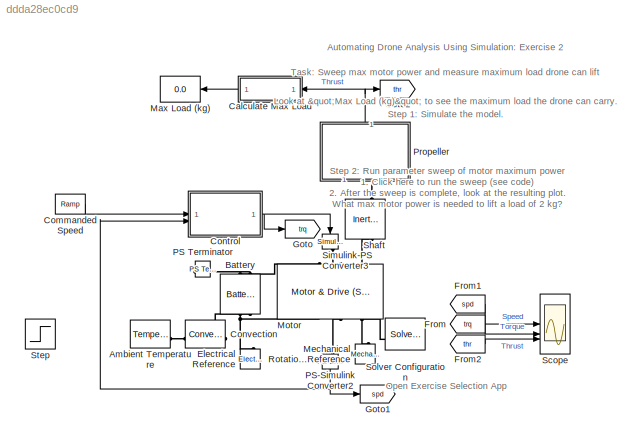
MODEL slx_ddda28ec0cd9
KIND model
CONFIG AbsTol = 1e-3
CONFIG EnableMultiTasking = on
CONFIG FixedStep = auto
CONFIG MaxStep = 5e-3
CONFIG MinStep = auto
CONFIG PreLoadFcn = motor_max_power = 120;
CONFIG RelTol = 1e-3
CONFIG SampleTimeConstraint = Unconstrained
CONFIG SolverName = ode23t
CONFIG StartTime = 0.0
CONFIG StopTime = 10.0
BLOCK [Reference] Ambient Temperature  REF=fl_lib/Thermal/Thermal Sources/Temperature Source
  SourceBlock = fl_lib/Thermal/Thermal Sources/Temperature Source
  SourceType = Temperature Source
BLOCK [Reference] Battery  REF=batteryecm_lib/Battery
  NameLocation = left
  SourceBlock = batteryecm_lib/Battery
  SourceType = Battery
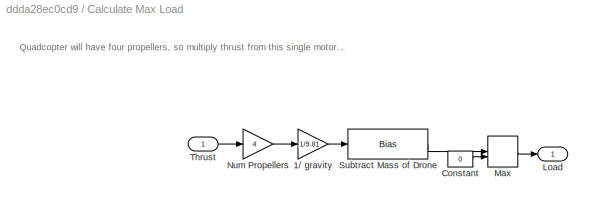
BLOCK [SubSystem] Calculate Max Load
  NameLocation = top
BLOCK [Gain] Calculate Max Load/1// gravity
  Gain = 1/9.81
BLOCK [Constant] Calculate Max Load/Constant
  Value = 0
BLOCK [Outport] Calculate Max Load/Load
BLOCK [MinMax] Calculate Max Load/Max
  Function = max
  Inputs = 2
BLOCK [Gain] Calculate Max Load/Num Propellers
  Gain = 4
BLOCK [Bias] Calculate Max Load/Subtract Mass of Drone
  Bias = -drone_mass
  SaturateOnIntegerOverflow = off
BLOCK [Inport] Calculate Max Load/Thrust
BLOCK [Reference] Commanded Speed  REF=simulink/Sources/Ramp
  NameLocation = top
  SourceBlock = simulink/Sources/Ramp
  SourceType = Ramp
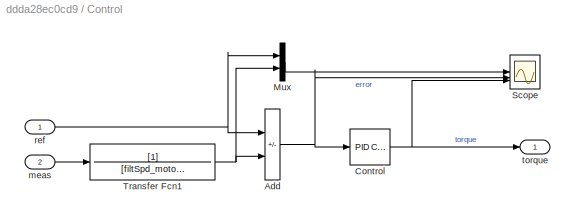
BLOCK [SubSystem] Control
BLOCK [Sum] Control/Add
  IconShape = rectangular
  Inputs = +-
BLOCK [Reference] Control/Control  REF=slpidlib/PID Controller
  SourceBlock = slpidlib/PID Controller
  SourceType = PID 1dof
BLOCK [Mux] Control/Mux
  DisplayOption = bar
  Inputs = 2
BLOCK [Scope] Control/Scope
  Floating = off
  NumInputPorts = 3
  ScopeSpecificationString = Simulink.scopes.TimeScopeBlockCfg('CurrentConfiguration', extmgr.ConfigurationSet(extmgr.Configuration('Core','General UI',true),extmgr.Configuration('Core','Source UI',true),extmgr.Configuration('Sources','WiredSimulink',true,'DataLoggingVariableName','ScopeData3'),extmgr.Configuration('Visuals','Time Domain',true,'SerializedDisplays',{struct('MinYLimReal','-51413.90485','MaxYLimReal','107953.943...<+2724ch>
BLOCK [TransferFcn] Control/Transfer Fcn1
  Denominator = [filtSpd_motor 1]
BLOCK [Inport] Control/meas
  Port = 2
BLOCK [Inport] Control/ref
BLOCK [Outport] Control/torque
BLOCK [Reference] Convection  REF=fl_lib/Thermal/Thermal Elements/Convective Heat
Transfer
  SourceBlock = fl_lib/Thermal/Thermal Elements/Convective Heat\nTransfer
  SourceType = Convective Heat\nTransfer
BLOCK [Reference] Electrical Reference  REF=fl_lib/Electrical/Electrical Elements/Electrical Reference
  NameLocation = right
  SourceBlock = fl_lib/Electrical/Electrical Elements/Electrical Reference
  SourceType = Electrical Reference
BLOCK [From] From
  GotoTag = trq
BLOCK [From] From1
  GotoTag = spd
BLOCK [From] From2
  GotoTag = thr
BLOCK [Goto] Goto
  GotoTag = trq
BLOCK [Goto] Goto1
  GotoTag = spd
BLOCK [Goto] Goto2
  GotoTag = thr
BLOCK [Display] Max Load (kg)
  Decimation = 1
BLOCK [Reference] Mechanical Rotational Reference  REF=fl_lib/Mechanical/Rotational Elements/Mechanical
Rotational Reference
  NameLocation = right
  SourceBlock = fl_lib/Mechanical/Rotational Elements/Mechanical\nRotational Reference
  SourceType = Mechanical\nRotational Reference
BLOCK [Reference] Motor  REF=ee_lib/Electromechanical/Motor & Drive
(System Level)
  NameLocation = right
  SourceBlock = ee_lib/Electromechanical/Motor & Drive\n(System Level)
  SourceType = Motor & Drive\n(System Level)
BLOCK [Reference] PS Terminator  REF=fl_lib/Physical Signals/Sinks/PS Terminator
  NameLocation = top
  SourceBlock = fl_lib/Physical Signals/Sinks/PS Terminator
  SourceType = PS Terminator
BLOCK [Reference] PS-Simulink Converter2  REF=nesl_utility/PS-Simulink
Converter
  NameLocation = left
  SourceBlock = nesl_utility/PS-Simulink\nConverter
  SourceType = PS-Simulink\nConverter
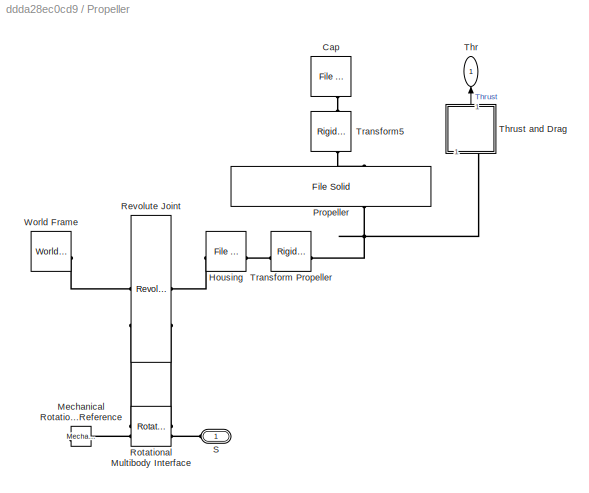
BLOCK [SubSystem] Propeller
  NameLocation = left
BLOCK [Reference] Propeller/Cap  REF=sm_lib/Body Elements/File Solid
  NameLocation = right
  SourceBlock = sm_lib/Body Elements/File Solid
  SourceType = File Solid
BLOCK [Reference] Propeller/Housing  REF=sm_lib/Body Elements/File Solid
  SourceBlock = sm_lib/Body Elements/File Solid
  SourceType = File Solid
BLOCK [Reference] Propeller/Mechanical Rotational Reference  REF=fl_lib/Mechanical/Rotational Elements/Mechanical
Rotational Reference
  NameLocation = top
  SourceBlock = fl_lib/Mechanical/Rotational Elements/Mechanical\nRotational Reference
  SourceType = Mechanical\nRotational Reference
BLOCK [Reference] Propeller/Propeller  REF=sm_lib/Body Elements/File Solid
  NameLocation = left
  SourceBlock = sm_lib/Body Elements/File Solid
  SourceType = File Solid
BLOCK [Reference] Propeller/Revolute Joint  REF=sm_lib/Joints/Revolute Joint
  SourceBlock = sm_lib/Joints/Revolute Joint
  SourceType = Revolute Joint
BLOCK [Reference] Propeller/Rotational Multibody Interface  REF=fl_lib/Mechanical/Multibody Interfaces/Rotational Multibody
Interface
  SourceBlock = fl_lib/Mechanical/Multibody Interfaces/Rotational Multibody\nInterface
  SourceType = Rotational Multibody\nInterface
BLOCK [PMIOPort] Propeller/S
  Side = Left
BLOCK [Outport] Propeller/Thr
  NameLocation = right
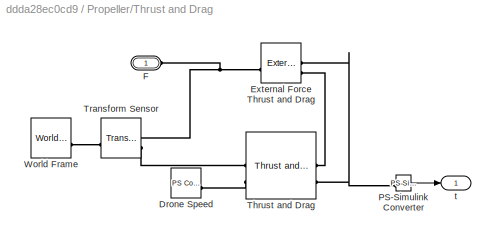
BLOCK [SubSystem] Propeller/Thrust and Drag
  NameLocation = left
BLOCK [Reference] Propeller/Thrust and Drag/Drone Speed  REF=fl_lib/Physical Signals/Sources/PS Constant
  SourceBlock = fl_lib/Physical Signals/Sources/PS Constant
  SourceType = PS Constant
BLOCK [Reference] Propeller/Thrust and Drag/External Force Thrust and Drag  REF=sm_lib/Forces and
Torques/External Force
and Torque
  SourceBlock = sm_lib/Forces and\nTorques/External Force\nand Torque
  SourceType = External Force\nand Torque
BLOCK [PMIOPort] Propeller/Thrust and Drag/F
  Side = Left
BLOCK [Reference] Propeller/Thrust and Drag/PS-Simulink Converter  REF=nesl_utility/PS-Simulink
Converter
  SourceBlock = nesl_utility/PS-Simulink\nConverter
  SourceType = PS-Simulink\nConverter
BLOCK [Reference] Propeller/Thrust and Drag/Thrust and Drag  REF=quadcopter_library/Propeller/Thrust and Drag  (lib defined in slx_56214d765e25, slx_704f8fc3f527, +4 more)
  SourceBlock = quadcopter_library/Propeller/Thrust and Drag
BLOCK [Reference] Propeller/Thrust and Drag/Transform Sensor  REF=sm_lib/Frames and
Transforms/Transform
Sensor
  SourceBlock = sm_lib/Frames and\nTransforms/Transform\nSensor
  SourceType = Transform\nSensor
BLOCK [Reference] Propeller/Thrust and Drag/World Frame  REF=sm_lib/Frames and
Transforms/World Frame
  SourceBlock = sm_lib/Frames and\nTransforms/World Frame
  SourceType = World Frame
BLOCK [Outport] Propeller/Thrust and Drag/t
BLOCK [Reference] Propeller/Transform Propeller  REF=sm_lib/Frames and
Transforms/Rigid
Transform
  SourceBlock = sm_lib/Frames and\nTransforms/Rigid\nTransform
  SourceType = Rigid\nTransform
BLOCK [Reference] Propeller/Transform5  REF=sm_lib/Frames and
Transforms/Rigid
Transform
  NameLocation = right
  SourceBlock = sm_lib/Frames and\nTransforms/Rigid\nTransform
  SourceType = Rigid\nTransform
BLOCK [Reference] Propeller/World Frame  REF=sm_lib/Frames and
Transforms/World Frame
  SourceBlock = sm_lib/Frames and\nTransforms/World Frame
  SourceType = World Frame
BLOCK [Scope] Scope
  Floating = off
  NumInputPorts = 3
  ScopeSpecificationString = Simulink.scopes.TimeScopeBlockCfg('CurrentConfiguration', extmgr.ConfigurationSet(extmgr.Configuration('Core','General UI',true),extmgr.Configuration('Core','Source UI',true),extmgr.Configuration('Sources','WiredSimulink',true,'DataLoggingVariableName','ScopeData1'),extmgr.Configuration('Visuals','Time Domain',true,'SerializedDisplays',{struct('MinYLimReal','-927.50118','MaxYLimReal','8347.51066',...<+5090ch>
BLOCK [Reference] Shaft  REF=fl_lib/Mechanical/Rotational Elements/Inertia
  NameLocation = right
  SourceBlock = fl_lib/Mechanical/Rotational Elements/Inertia
  SourceType = Inertia
BLOCK [Reference] Simulink-PS Converter3  REF=nesl_utility/Simulink-PS
Converter
  NameLocation = left
  SourceBlock = nesl_utility/Simulink-PS\nConverter
  SourceType = Simulink-PS\nConverter
BLOCK [Reference] Solver Configuration  REF=nesl_utility/Solver
Configuration
  SourceBlock = nesl_utility/Solver\nConfiguration
  SourceType = Solver\nConfiguration
BLOCK [Step] Step
  SampleTime = 0
ANNOTATION (root): Automating Drone Analysis Using Simulation: Exercise 2
ANNOTATION (root): Open Exercise Selection App
ANNOTATION (root): Step 1: Simulate the model. Look at "Max Load (kg)" to see the maximum load the drone can carry.
ANNOTATION (root): Step 2: Run parameter sweep of motor maximum power 1. Click here to run the sweep ( see code ) 2. After the sweep is complete, look at the resulting plot. What max motor power is needed to lift a load of 2 kg?
ANNOTATION (root): Task: Sweep max motor power and measure maximum load drone can lift
ANNOTATION Calculate Max Load: Quadcopter will have four propellers, so multiply thrust from this single motor by 4.
LINE Calculate Max Load/1// gravity:1 -> Calculate Max Load/Subtract Mass of Drone:1
LINE Calculate Max Load/Constant:1 -> Calculate Max Load/Max:2
LINE Calculate Max Load/Max:1 -> Calculate Max Load/Load:1
LINE Calculate Max Load/Num Propellers:1 -> Calculate Max Load/1// gravity:1
LINE Calculate Max Load/Subtract Mass of Drone:1 -> Calculate Max Load/Max:1
LINE Calculate Max Load/Thrust:1 -> Calculate Max Load/Num Propellers:1
LINE Calculate Max Load:1 -> Max Load (kg):1
LINE Commanded Speed:1 -> Control:1
NET Control/Add:1 -> Control/Control:1, Control/Scope:2
NET Control/Control:1 -> Control/Scope:3, Control/torque:1
LINE Control/Mux:1 -> Control/Scope:1
NET Control/Transfer Fcn1:1 -> Control/Add:2, Control/Mux:2
LINE Control/meas:1 -> Control/Transfer Fcn1:1
NET Control/ref:1 -> Control/Add:1, Control/Mux:1
NET Control:1 -> Goto:1, Simulink-PS Converter3:1
LINE From1:1 -> Scope:1
LINE From2:1 -> Scope:3
LINE From:1 -> Scope:2
NET PS-Simulink Converter2:1 -> Control:2, Goto1:1
LINE Propeller/Thrust and Drag/PS-Simulink Converter:1 -> Propeller/Thrust and Drag/t:1
LINE Propeller/Thrust and Drag:1 -> Propeller/Thr:1
NET Propeller:1 -> Calculate Max Load:1, Goto2:1
PLINE Ambient Temperature:LConn1 -- Convection:RConn1
PLINE Battery:LConn1 -- Motor:LConn1
PLINE Battery:LConn2 -- PS Terminator:LConn1
PNET net1: Battery:RConn1 -- Electrical Reference:LConn1 -- Motor:RConn1
PLINE Battery:RConn2 -- Convection:LConn1
PNET net2: Mechanical Rotational Reference:LConn1 -- Motor:RConn3 -- Solver Configuration:RConn1
PLINE Motor:LConn2 -- Simulink-PS Converter3:RConn1
PLINE Motor:LConn3 -- Shaft:LConn1
PLINE Motor:RConn2 -- PS-Simulink Converter2:LConn1
PLINE Propeller/Cap:RConn1 -- Propeller/Transform5:RConn1
PLINE Propeller/Housing:LConn1 -- Propeller/Revolute Joint:RConn1
PLINE Propeller/Housing:RConn1 -- Propeller/Transform Propeller:LConn1
PLINE Propeller/Mechanical Rotational Reference:LConn1 -- Propeller/Rotational Multibody Interface:LConn2
PLINE Propeller/Propeller:LConn1 -- Propeller/Transform5:LConn1
PNET net3: Propeller/Propeller:RConn1 -- Propeller/Thrust and Drag:LConn1 -- Propeller/Transform Propeller:RConn1
PLINE Propeller/Revolute Joint:LConn1 -- Propeller/World Frame:RConn1
PLINE Propeller/Revolute Joint:LConn2 -- Propeller/Rotational Multibody Interface:LConn1
PLINE Propeller/Revolute Joint:RConn2 -- Propeller/Rotational Multibody Interface:RConn1
PLINE Propeller/Rotational Multibody Interface:RConn2 -- Propeller/S:RConn1
PLINE Propeller/Thrust and Drag/Drone Speed:RConn1 -- Propeller/Thrust and Drag/Thrust and Drag:LConn2
PNET net4: Propeller/Thrust and Drag/External Force Thrust and Drag:LConn1 -- Propeller/Thrust and Drag/PS-Simulink Converter:LConn1 -- Propeller/Thrust and Drag/Thrust and Drag:RConn2
PLINE Propeller/Thrust and Drag/External Force Thrust and Drag:LConn2 -- Propeller/Thrust and Drag/Thrust and Drag:RConn1
PNET net5: Propeller/Thrust and Drag/External Force Thrust and Drag:RConn1 -- Propeller/Thrust and Drag/F:RConn1 -- Propeller/Thrust and Drag/Transform Sensor:RConn1
PLINE Propeller/Thrust and Drag/Thrust and Drag:LConn1 -- Propeller/Thrust and Drag/Transform Sensor:RConn2
PLINE Propeller/Thrust and Drag/Transform Sensor:LConn1 -- Propeller/Thrust and Drag/World Frame:RConn1
PLINE Propeller:LConn1 -- Shaft:RConn1
note: NET lines group one-source signal fan-out (src -> all destinations, sorted); 1:1 wires keep LINE; PNET lines group multi-terminal physical nets as a canonical sorted terminal list (undirected conserving connections); 2-terminal nets keep the pairwise PLINE form
